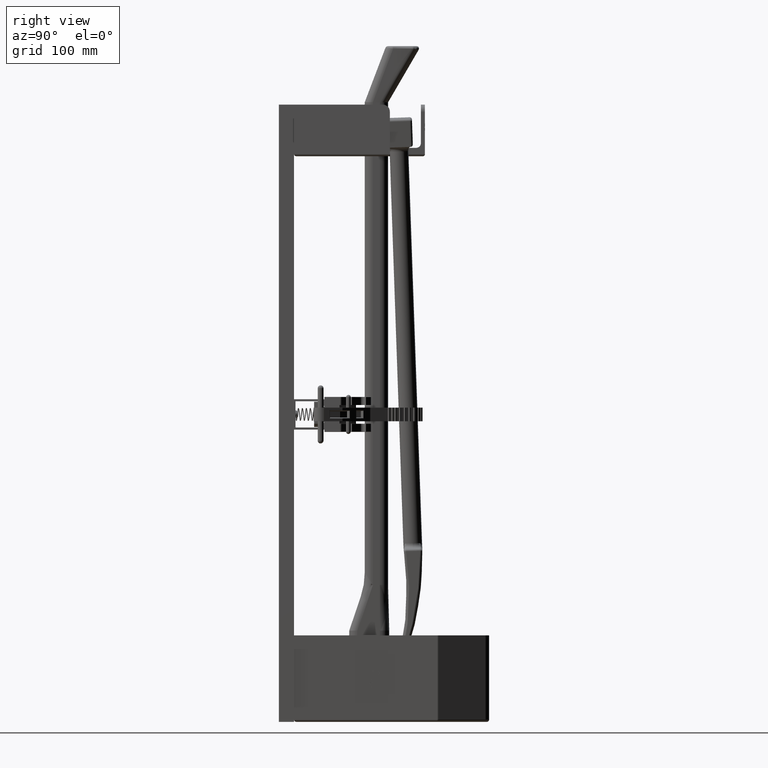
[diagram: clean part render]
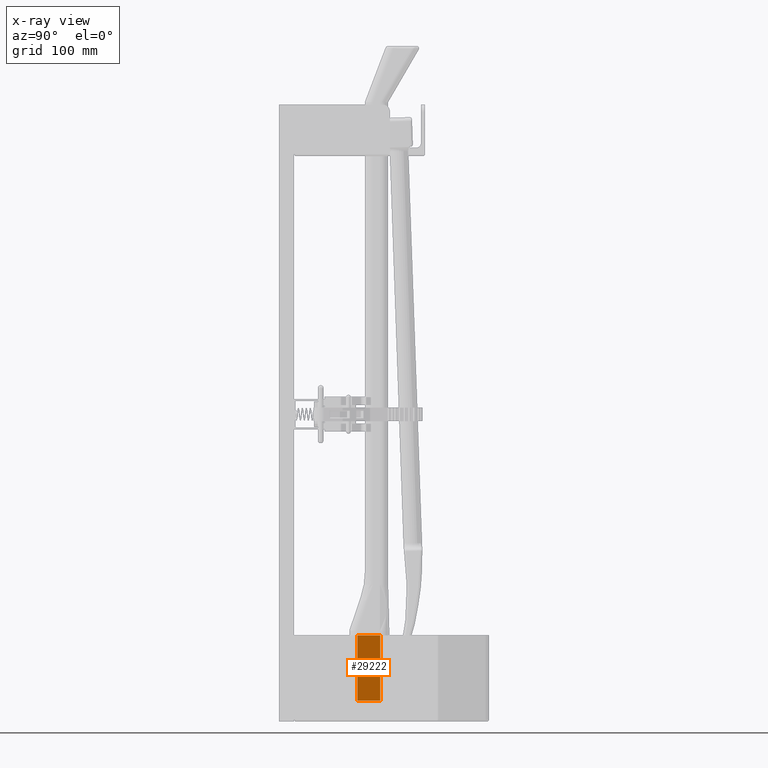
[diagram: x-ray — body ghosted, one internal face saturated and labeled with its STEP entity id]
A machine part, right view, then the same camera in x-ray: the body is ghosted and one INTERNAL B-rep face — a face not visible from any outside direction — is saturated and labeled: STEP entity #29222.
In plain terms, the highlighted planar face has unit normal (1, 0, 0).
Its self-contained STEP definition (entity closure, byte-faithful):
#22990 = ORIENTED_EDGE ( 'NONE', *, *, #28795, .F. ) ;
#22991 = ORIENTED_EDGE ( 'NONE', *, *, #28822, .T. ) ;
#22992 = ORIENTED_EDGE ( 'NONE', *, *, #28776, .T. ) ;
#22993 = ORIENTED_EDGE ( 'NONE', *, *, #28824, .T. ) ;
#24356 = EDGE_LOOP ( 'NONE', ( #22990, #22991, #22992, #22993 ) ) ;
#24793 = VERTEX_POINT ( 'NONE', #41961 ) ;
#24794 = VERTEX_POINT ( 'NONE', #41963 ) ;
#24816 = VERTEX_POINT ( 'NONE', #42012 ) ;
#24818 = VERTEX_POINT ( 'NONE', #42015 ) ;
#28776 = EDGE_CURVE ( 'NONE', #24794, #24793, #50584, .T. ) ;
#28795 = EDGE_CURVE ( 'NONE', #24816, #24818, #50622, .T. ) ;
#28822 = EDGE_CURVE ( 'NONE', #24816, #24794, #50678, .T. ) ;
#28824 = EDGE_CURVE ( 'NONE', #24793, #24818, #50661, .T. ) ;
#29222 = ADVANCED_FACE ( 'NONE', ( #51245 ), #63483, .T. ) ;
#37609 = AXIS2_PLACEMENT_3D ( 'NONE', #63476, #63488, #63489 ) ;
#41961 = CARTESIAN_POINT ( 'NONE',  ( -2.012444690265487300, 2.070251695529383700, 3.500000000000000000 ) ) ;
#41963 = CARTESIAN_POINT ( 'NONE',  ( -2.012444690265487300, 0.8509975320812375200, 3.500000000000000000 ) ) ;
#42012 = CARTESIAN_POINT ( 'NONE',  ( -2.012444690265487300, 0.8509975320812375200, 0.0000000000000000000 ) ) ;
#42015 = CARTESIAN_POINT ( 'NONE',  ( -2.012444690265487300, 2.070251695529383700, 0.0000000000000000000 ) ) ;
#50584 = LINE ( 'NONE', #52304, #50585 ) ;
#50585 = VECTOR ( 'NONE', #52305, 39.37007874015748100 ) ;
#50622 = LINE ( 'NONE', #52347, #50623 ) ;
#50623 = VECTOR ( 'NONE', #52348, 39.37007874015748100 ) ;
#50651 = VECTOR ( 'NONE', #52410, 39.37007874015748100 ) ;
#50661 = LINE ( 'NONE', #52409, #50651 ) ;
#50678 = LINE ( 'NONE', #52403, #50679 ) ;
#50679 = VECTOR ( 'NONE', #52404, 39.37007874015748100 ) ;
#51245 = FACE_OUTER_BOUND ( 'NONE', #24356, .T. ) ;
#52304 = CARTESIAN_POINT ( 'NONE',  ( -2.012444690265487300, 0.3668746138053105000, 3.500000000000000000 ) ) ;
#52305 = DIRECTION ( 'NONE',  ( 0.0000000000000000000, 1.000000000000000000, 0.0000000000000000000 ) ) ;
#52347 = CARTESIAN_POINT ( 'NONE',  ( -2.012444690265487300, 0.3668746138053105000, 0.0000000000000000000 ) ) ;
#52348 = DIRECTION ( 'NONE',  ( 0.0000000000000000000, 1.000000000000000000, 0.0000000000000000000 ) ) ;
#52403 = CARTESIAN_POINT ( 'NONE',  ( -2.012444690265487300, 0.8509975320812375200, 3.500000000000000000 ) ) ;
#52404 = DIRECTION ( 'NONE',  ( 0.0000000000000000000, -0.0000000000000000000, 1.000000000000000000 ) ) ;
#52409 = CARTESIAN_POINT ( 'NONE',  ( -2.012444690265487300, 2.070251695529383700, 0.0000000000000000000 ) ) ;
#52410 = DIRECTION ( 'NONE',  ( -0.0000000000000000000, 0.0000000000000000000, -1.000000000000000000 ) ) ;
#63476 = CARTESIAN_POINT ( 'NONE',  ( -2.012444690265487300, 0.3668746138053105000, 3.500000000000000000 ) ) ;
#63483 = PLANE ( 'NONE',  #37609 ) ;
#63488 = DIRECTION ( 'NONE',  ( -1.000000000000000000, 0.0000000000000000000, 0.0000000000000000000 ) ) ;
#63489 = DIRECTION ( 'NONE',  ( 0.0000000000000000000, 0.0000000000000000000, 1.000000000000000000 ) ) ;